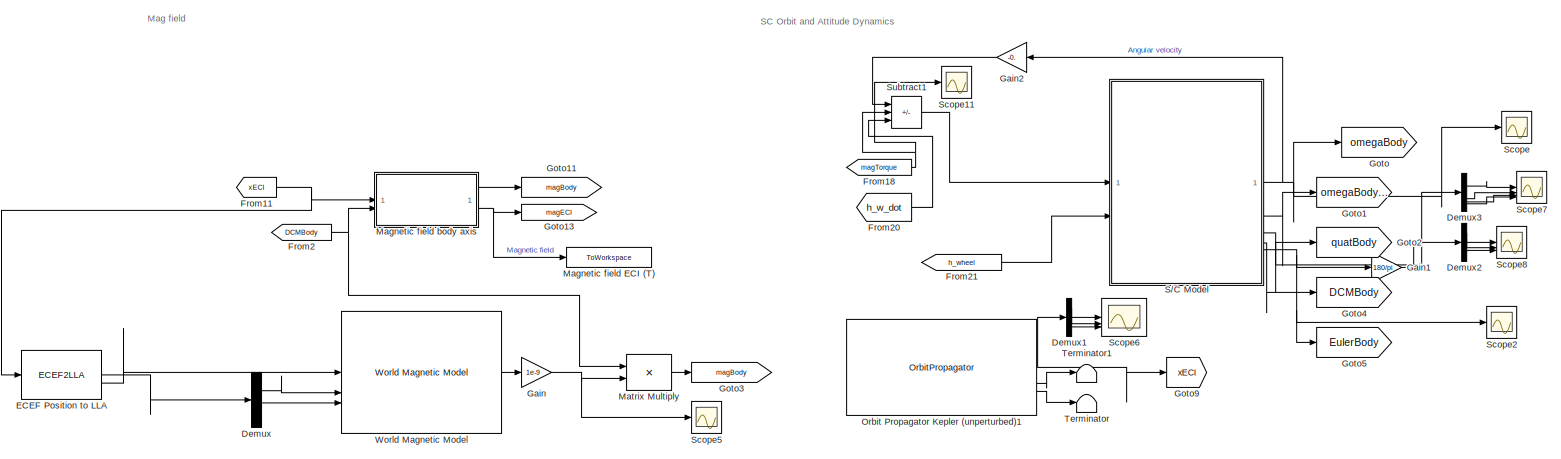
[diagram: root canvas - part 1/2, full width, top band]
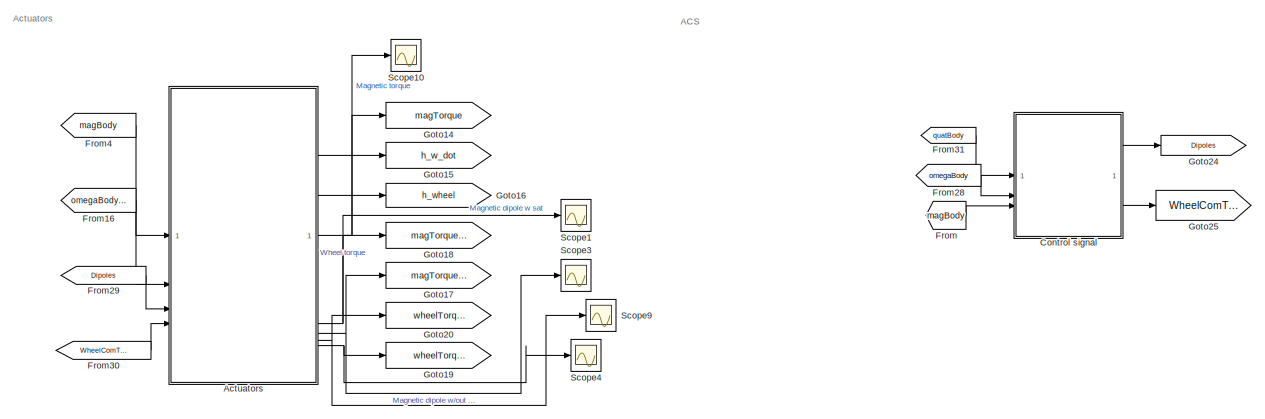
[diagram: root canvas - part 2/2, full width, bottom band]
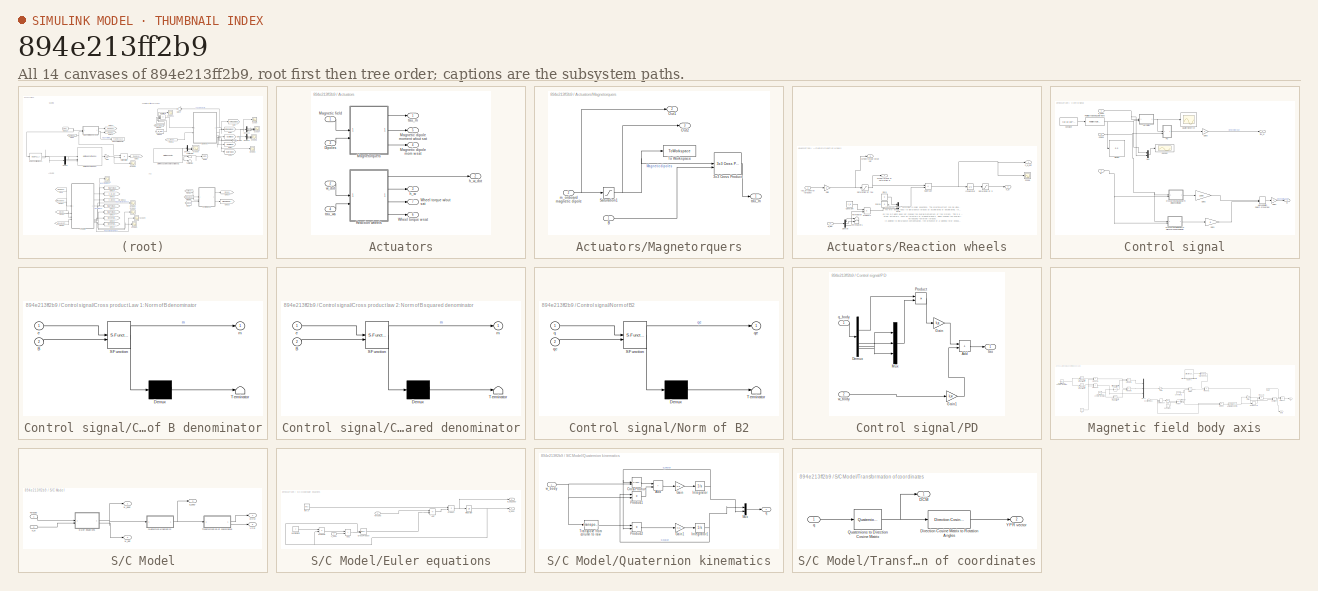
[diagram: thumbnail index - all 14 canvases of the model, root first then tree order]
MODEL slx_894e213ff2b9
KIND model
CONFIG AbsTol = auto
CONFIG EnableMultiTasking = off
CONFIG FixedStep = 0.01
CONFIG MaxStep = auto
CONFIG MinStep = auto
CONFIG RelTol = 1e-3
CONFIG SampleTimeConstraint = Unconstrained
CONFIG SolverName = FixedStepAuto
CONFIG StartTime = 0.0
CONFIG StopTime = 27726
BLOCK [SubSystem] Actuators
BLOCK [Inport] Actuators/Dipoles
  Port = 3
BLOCK [Outport] Actuators/Magnetic dipole mom w sat
  Port = 4
BLOCK [Outport] Actuators/Magnetic dipole moment w//out sat
  Port = 5
BLOCK [Inport] Actuators/Magnetic field
BLOCK [SubSystem] Actuators/Magnetorquers
BLOCK [Reference] Actuators/Magnetorquers/3x3 Cross Product  REF=sharedutil/3x3 Cross Product
  SourceBlock = sharedutil/3x3 Cross Product
  SourceType = CrossProduct
BLOCK [Inport] Actuators/Magnetorquers/B
BLOCK [Outport] Actuators/Magnetorquers/Out1
  Port = 2
BLOCK [Outport] Actuators/Magnetorquers/Out2
  Port = 3
BLOCK [Saturate] Actuators/Magnetorquers/Saturation1
  LowerLimit = -20
  UpperLimit = 20
BLOCK [ToWorkspace] Actuators/Magnetorquers/To Workspace
  FixptAsFi = on
  MaxDataPoints = inf
  SampleTime = -1
  SaveFormat = Timeseries
  VariableName = magnetic_dipoles
BLOCK [Inport] Actuators/Magnetorquers/m_onboard magnetic dipole
  Port = 2
BLOCK [Outport] Actuators/Magnetorquers/tau_m
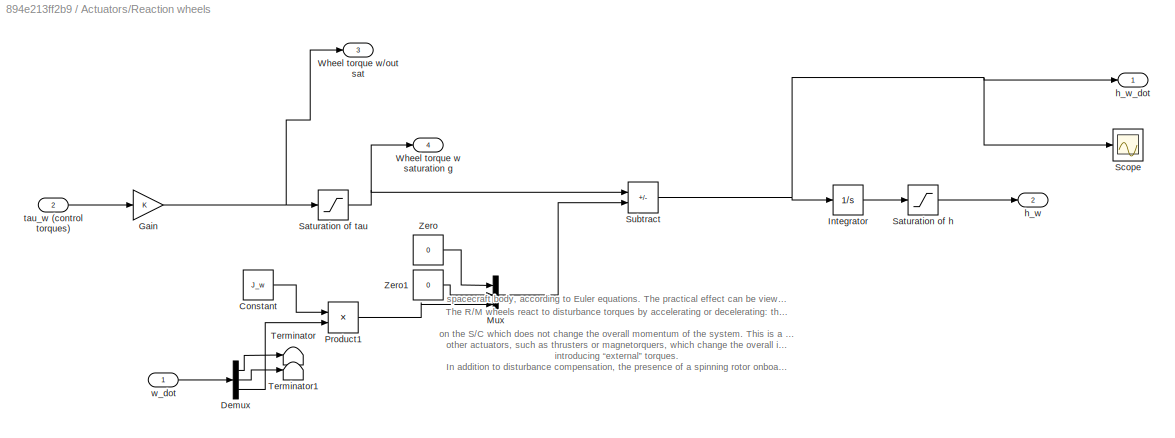
BLOCK [SubSystem] Actuators/Reaction wheels
BLOCK [Constant] Actuators/Reaction wheels/Constant
  Value = J_w
BLOCK [Demux] Actuators/Reaction wheels/Demux
  Outputs = 3
BLOCK [Gain] Actuators/Reaction wheels/Gain
BLOCK [Integrator] Actuators/Reaction wheels/Integrator
BLOCK [Mux] Actuators/Reaction wheels/Mux
  DisplayOption = bar
  Inputs = 3
BLOCK [Product] Actuators/Reaction wheels/Product1
BLOCK [Saturate] Actuators/Reaction wheels/Saturation of h
  LowerLimit = -wheel_momentum_max*100
  UpperLimit = wheel_momentum_max*100
BLOCK [Saturate] Actuators/Reaction wheels/Saturation of tau
  LowerLimit = -wheel_torque_max*10
  UpperLimit = wheel_torque_max*10
BLOCK [Scope] Actuators/Reaction wheels/Scope
  Floating = off
  NumInputPorts = 1
  ScopeSpecificationString = Simulink.scopes.TimeScopeBlockCfg('CurrentConfiguration', extmgr.ConfigurationSet(extmgr.Configuration('Core','General UI',true),extmgr.Configuration('Core','Source UI',true),extmgr.Configuration('Sources','WiredSimulink',true,'DataLoggingVariableName','ScopeData3'),extmgr.Configuration('Visuals','Time Domain',true,'SerializedDisplays',{struct('MinYLimReal','-0.000056','MaxYLimReal','0.000035','YL...<+1386ch>
BLOCK [Sum] Actuators/Reaction wheels/Subtract
  IconShape = rectangular
  Inputs = +-
BLOCK [Terminator] Actuators/Reaction wheels/Terminator
BLOCK [Terminator] Actuators/Reaction wheels/Terminator1
BLOCK [Outport] Actuators/Reaction wheels/Wheel torque w saturation g
  NameLocation = right
  Port = 4
BLOCK [Outport] Actuators/Reaction wheels/Wheel torque w//out sat
  Port = 3
BLOCK [Constant] Actuators/Reaction wheels/Zero
  OutDataTypeStr = Inherit: Inherit via back propagation
  Value = 0
BLOCK [Constant] Actuators/Reaction wheels/Zero1
  OutDataTypeStr = Inherit: Inherit via back propagation
  Value = 0
BLOCK [Outport] Actuators/Reaction wheels/h_w
  Port = 2
BLOCK [Outport] Actuators/Reaction wheels/h_w_dot
BLOCK [Inport] Actuators/Reaction wheels/tau_w (control torques)
  Port = 2
BLOCK [Inport] Actuators/Reaction wheels/w_dot
BLOCK [Outport] Actuators/Wheel torque w sat
  Port = 6
BLOCK [Outport] Actuators/Wheel torque w//out sat
  Port = 7
BLOCK [Outport] Actuators/h_w
  Port = 3
BLOCK [Outport] Actuators/h_w_dot
  Port = 2
BLOCK [Outport] Actuators/tau_m
BLOCK [Inport] Actuators/tau_ws
  Port = 4
BLOCK [Inport] Actuators/w_dot
  Port = 2
BLOCK [SubSystem] Control signal
BLOCK [Inport] Control signal/B
  Port = 3
BLOCK [Constant] Control signal/Constant
  Value = [10 10 10]*pi/180
BLOCK [SubSystem] Control signal/Cross product Law 1: Norm of B denominator
  ErrorFcn = Stateflow.Translate.translate
  PermitHierarchicalResolution = ExplicitOnly
  SFBlockType = MATLAB Function
  TreatAsAtomicUnit = on
BLOCK [Demux] Control signal/Cross product Law 1: Norm of B denominator/ Demux 
  Outputs = 1
BLOCK [S-Function] Control signal/Cross product Law 1: Norm of B denominator/ SFunction 
  EnableBusSupport = on
  FunctionName = sf_sfun
  PortCounts = [2 2]
  SFcnIsStateOwnerBlock = off
  SFunctionDeploymentMode = off
  Tag = Stateflow S-Function 2
BLOCK [Terminator] Control signal/Cross product Law 1: Norm of B denominator/ Terminator 
BLOCK [Inport] Control signal/Cross product Law 1: Norm of B denominator/B
  Port = 2
BLOCK [Inport] Control signal/Cross product Law 1: Norm of B denominator/e
BLOCK [Outport] Control signal/Cross product Law 1: Norm of B denominator/m
BLOCK [SubSystem] Control signal/Cross product law 2: Norm of B squared denominator
  ErrorFcn = Stateflow.Translate.translate
  PermitHierarchicalResolution = ExplicitOnly
  SFBlockType = MATLAB Function
  TreatAsAtomicUnit = on
BLOCK [Demux] Control signal/Cross product law 2: Norm of B squared denominator/ Demux 
  Outputs = 1
BLOCK [S-Function] Control signal/Cross product law 2: Norm of B squared denominator/ SFunction 
  EnableBusSupport = on
  FunctionName = sf_sfun
  PortCounts = [2 2]
  SFcnIsStateOwnerBlock = off
  SFunctionDeploymentMode = off
  Tag = Stateflow S-Function 1
BLOCK [Terminator] Control signal/Cross product law 2: Norm of B squared denominator/ Terminator 
BLOCK [Inport] Control signal/Cross product law 2: Norm of B squared denominator/B
  Port = 2
BLOCK [Inport] Control signal/Cross product law 2: Norm of B squared denominator/e
BLOCK [Outport] Control signal/Cross product law 2: Norm of B squared denominator/m
BLOCK [Display] Control signal/Display
  Decimation = 1
BLOCK [Gain] Control signal/Gain1
  Gain = 5
BLOCK [Gain] Control signal/Gain2
  Gain = 1000
BLOCK [Gain] Control signal/Gain3
  Gain = 0
BLOCK [Gain] Control signal/Gain4
BLOCK [ManualSwitch] Control signal/Manual Switch Select Mag torquer law
  CurrentSetting = 0
BLOCK [Mux] Control signal/Mux
  DisplayOption = bar
  Inputs = 2
BLOCK [SubSystem] Control signal/Norm of B2
  ErrorFcn = Stateflow.Translate.translate
  PermitHierarchicalResolution = ExplicitOnly
  SFBlockType = MATLAB Function
  TreatAsAtomicUnit = on
BLOCK [Demux] Control signal/Norm of B2/ Demux 
  Outputs = 1
BLOCK [S-Function] Control signal/Norm of B2/ SFunction 
  EnableBusSupport = on
  FunctionName = sf_sfun
  PortCounts = [2 2]
  SFcnIsStateOwnerBlock = off
  SFunctionDeploymentMode = off
  Tag = Stateflow S-Function 3
BLOCK [Terminator] Control signal/Norm of B2/ Terminator 
BLOCK [Inport] Control signal/Norm of B2/q
BLOCK [Inport] Control signal/Norm of B2/qc
  Port = 2
BLOCK [Outport] Control signal/Norm of B2/qe
BLOCK [SubSystem] Control signal/PD
BLOCK [Sum] Control signal/PD/Add
  IconShape = rectangular
BLOCK [Demux] Control signal/PD/Demux
BLOCK [Gain] Control signal/PD/Gain
  Gain = k_q
BLOCK [Gain] Control signal/PD/Gain1
  Gain = k_w
BLOCK [Mux] Control signal/PD/Mux
  DisplayOption = bar
  Inputs = 3
BLOCK [Product] Control signal/PD/Product
BLOCK [Inport] Control signal/PD/q_body
BLOCK [Outport] Control signal/PD/tau
BLOCK [Inport] Control signal/PD/w_body
  Port = 2
BLOCK [Scope] Control signal/Quaternion error
  Floating = off
  NumInputPorts = 1
  ScopeSpecificationString = Simulink.scopes.TimeScopeBlockCfg('CurrentConfiguration', extmgr.ConfigurationSet(extmgr.Configuration('Core','General UI',true),extmgr.Configuration('Core','Source UI',true),extmgr.Configuration('Sources','WiredSimulink',true,'DataLoggingVariableName','ScopeData4'),extmgr.Configuration('Visuals','Time Domain',true,'SerializedDisplays',{struct('MinYLimReal','-0.23082','MaxYLimReal','1.13676','YLab...<+1416ch>
BLOCK [Reference] Control signal/Rotation Angles to Quaternions  REF=sharedtransform/Rotation Angles to Quaternions
  AttributesFormatString = Rotation Order: %<rotationOrder>
  SourceBlock = sharedtransform/Rotation Angles to Quaternions
  SourceType = Ang2Quat
BLOCK [Outport] Control signal/m
BLOCK [Inport] Control signal/omega
  Port = 2
BLOCK [Scope] Control signal/q and qc
  Floating = off
  NumInputPorts = 1
  ScopeSpecificationString = Simulink.scopes.TimeScopeBlockCfg('CurrentConfiguration', extmgr.ConfigurationSet(extmgr.Configuration('Core','General UI',true),extmgr.Configuration('Core','Source UI',true),extmgr.Configuration('Sources','WiredSimulink',true,'DataLoggingVariableName','ScopeData3'),extmgr.Configuration('Visuals','Time Domain',true,'SerializedDisplays',{struct('MinYLimReal','-0.12461','MaxYLimReal','1.12153','YLab...<+1540ch>
BLOCK [Inport] Control signal/q_body
BLOCK [Outport] Control signal/tau_w
  Port = 2
BLOCK [Demux] Demux
  Outputs = 2
BLOCK [Demux] Demux1
  Outputs = 3
BLOCK [Demux] Demux2
  Outputs = 3
BLOCK [Demux] Demux3
BLOCK [ECEF2LLA] ECEF Position to LLA
BLOCK [From] From
  GotoTag = magBody
  IconDisplay = Tag and signal name
BLOCK [From] From11
  GotoTag = xECI
  IconDisplay = Signal name
BLOCK [From] From16
  GotoTag = omegaBodyDot
BLOCK [From] From18
  GotoTag = magTorque
BLOCK [From] From2
  GotoTag = DCMBody
BLOCK [From] From20
  GotoTag = h_w_dot
BLOCK [From] From21
  GotoTag = h_wheel
BLOCK [From] From28
  GotoTag = omegaBody
BLOCK [From] From29
  GotoTag = Dipoles
BLOCK [From] From30
  GotoTag = WheelComTorque
BLOCK [From] From31
  GotoTag = quatBody
BLOCK [From] From4
  GotoTag = magBody
BLOCK [Gain] Gain
  Gain = 1e-9
BLOCK [Gain] Gain1
  Gain = 180/pi
BLOCK [Gain] Gain2
  Gain = -0.
BLOCK [Goto] Goto
  GotoTag = omegaBody
BLOCK [Goto] Goto1
  GotoTag = omegaBodyDot
BLOCK [Goto] Goto11
  Commented = on
  GotoTag = magBody
BLOCK [Goto] Goto13
  Commented = on
  GotoTag = magECI
BLOCK [Goto] Goto14
  GotoTag = magTorque
BLOCK [Goto] Goto15
  GotoTag = h_w_dot
BLOCK [Goto] Goto16
  GotoTag = h_wheel
BLOCK [Goto] Goto17
  GotoTag = magTorqueWoutSat
BLOCK [Goto] Goto18
  GotoTag = magTorqueWSat
BLOCK [Goto] Goto19
  GotoTag = wheelTorqueWoutSat
BLOCK [Goto] Goto2
  GotoTag = quatBody
BLOCK [Goto] Goto20
  GotoTag = wheelTorqueWSat
BLOCK [Goto] Goto24
  GotoTag = Dipoles
BLOCK [Goto] Goto25
  GotoTag = WheelComTorque
BLOCK [Goto] Goto3
  GotoTag = magBody
BLOCK [Goto] Goto4
  GotoTag = DCMBody
BLOCK [Goto] Goto5
  GotoTag = EulerBody
BLOCK [Goto] Goto9
  GotoTag = xECI
BLOCK [ToWorkspace] Magnetic field ECI (T)
  Commented = on
  FixptAsFi = on
  MaxDataPoints = inf
  SampleTime = -1
  SaveFormat = Timeseries
  VariableName = Magnetic_Field
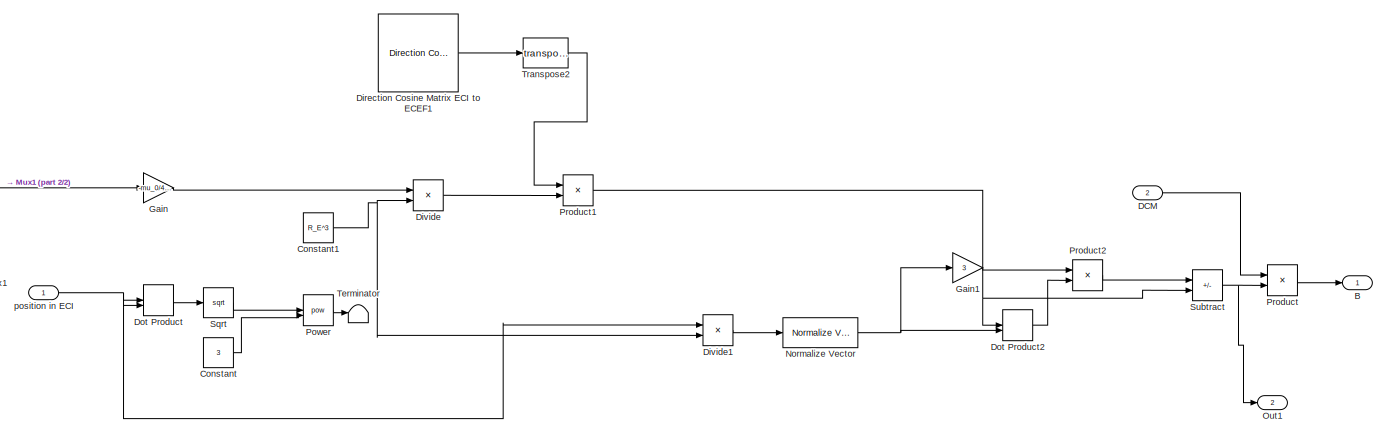
[diagram: Magnetic field body axis - part 1/2, right side, full height]
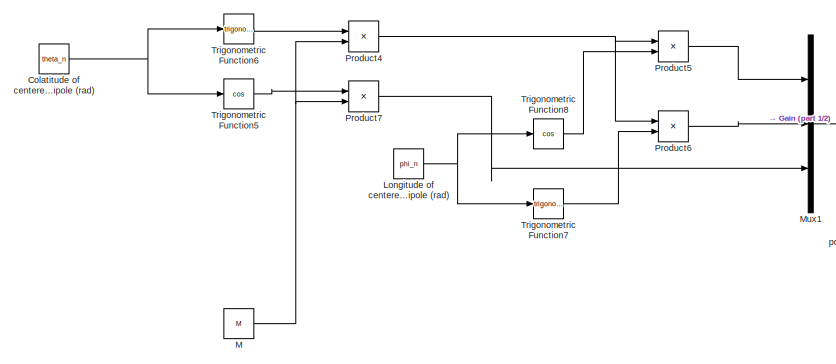
[diagram: Magnetic field body axis - part 2/2, left side, full height]
BLOCK [SubSystem] Magnetic field body axis
  Commented = on
BLOCK [Outport] Magnetic field body axis/B
BLOCK [Constant] Magnetic field body axis/Colatitude of centered magnetic dipole (rad)
  Value = theta_n
BLOCK [Constant] Magnetic field body axis/Constant
  Value = 3
BLOCK [Constant] Magnetic field body axis/Constant1
  Value = R_E^3
BLOCK [Inport] Magnetic field body axis/DCM
  Port = 2
BLOCK [Reference] Magnetic field body axis/Direction Cosine Matrix ECI to ECEF1  REF=aerolibtransform2/Direction Cosine Matrix
ECI to ECEF
  AttributesFormatString = %<red>
  SourceBlock = aerolibtransform2/Direction Cosine Matrix\nECI to ECEF
  SourceType = DCMECItoECEF
BLOCK [Product] Magnetic field body axis/Divide
  Inputs = */
BLOCK [Product] Magnetic field body axis/Divide1
  Inputs = */
BLOCK [DotProduct] Magnetic field body axis/Dot Product
  OutDataTypeStr = Inherit: Inherit via internal rule
BLOCK [DotProduct] Magnetic field body axis/Dot Product2
  OutDataTypeStr = Inherit: Inherit via internal rule
BLOCK [Gain] Magnetic field body axis/Gain
  Gain = -mu_0/4/pi
BLOCK [Gain] Magnetic field body axis/Gain1
  Gain = 3
BLOCK [Constant] Magnetic field body axis/Longitude of centered magnetic dipole (rad)
  Value = phi_n
BLOCK [Constant] Magnetic field body axis/M
  Value = M
BLOCK [Mux] Magnetic field body axis/Mux1
  DisplayOption = bar
  Inputs = 3
BLOCK [Reference] Magnetic field body axis/Normalize Vector  REF=vrlib/Utilities/Normalize Vector
  SourceBlock = vrlib/Utilities/Normalize Vector
  SourceType = Normalize Vector
BLOCK [Outport] Magnetic field body axis/Out1
  Port = 2
BLOCK [Math] Magnetic field body axis/Power
  Operator = pow
BLOCK [Product] Magnetic field body axis/Product
  Multiplication = Matrix(*)
BLOCK [Product] Magnetic field body axis/Product1
  Multiplication = Matrix(*)
BLOCK [Product] Magnetic field body axis/Product2
  Multiplication = Matrix(*)
BLOCK [Product] Magnetic field body axis/Product4
BLOCK [Product] Magnetic field body axis/Product5
BLOCK [Product] Magnetic field body axis/Product6
BLOCK [Product] Magnetic field body axis/Product7
BLOCK [Sqrt] Magnetic field body axis/Sqrt
BLOCK [Sum] Magnetic field body axis/Subtract
  IconShape = rectangular
  Inputs = +-
BLOCK [Terminator] Magnetic field body axis/Terminator
BLOCK [Math] Magnetic field body axis/Transpose2
  Operator = transpose
  RndMeth = Zero
  SignedPower = on
BLOCK [Trigonometry] Magnetic field body axis/Trigonometric Function5
  Operator = cos
BLOCK [Trigonometry] Magnetic field body axis/Trigonometric Function6
BLOCK [Trigonometry] Magnetic field body axis/Trigonometric Function7
BLOCK [Trigonometry] Magnetic field body axis/Trigonometric Function8
  Operator = cos
BLOCK [Inport] Magnetic field body axis/position in ECI
BLOCK [Product] Matrix Multiply
  Multiplication = Matrix(*)
BLOCK [OrbitPropagator] Orbit Propagator Kepler (unperturbed)1
  angleUnits = Radians
  argPeriapsis = arg_per
  customJ2 = 1.0826269e-03
  customMu = 4.305e13
  customOmega = 4.06125949e-3
  customR = 3396200
  eccentricity = ecc
  fixedPosition = [-4142689.0 -2676864.7 -4669861.6]
  fixedVelocity = [1452.7 -6720.7 2568.1]
  gravityModel = None
  inclination = orb_i
  inertialPosition = [3649700.0 3308200.0 -4676600.0]
  inertialVelocity = [-2750.8 6666.4 2573.4]
  outportFrame = Fixed-frame
  raan = RAAN
  semiMajorAxis = sma
  startDate = juliandate(2022, 4, 25, 12, 0, 0)
  trueAnomaly = 0*pi/180
  useEOPs = off
BLOCK [SubSystem] S//C Model
BLOCK [Outport] S//C Model/DCM
  Port = 4
BLOCK [SubSystem] S//C Model/Euler equations
BLOCK [Sum] S//C Model/Euler equations/Add
  IconShape = rectangular
  Inputs = +-
BLOCK [Sum] S//C Model/Euler equations/Add1
  IconShape = rectangular
BLOCK [Reference] S//C Model/Euler equations/Cross Product  REF=vrlib/Utilities/Cross Product
  SourceBlock = vrlib/Utilities/Cross Product
  SourceType = Cross Product
BLOCK [Constant] S//C Model/Euler equations/Inertia matrix
  Value = J
BLOCK [Integrator] S//C Model/Euler equations/Integrator
  InitialCondition = [0.1 0.1 0.1]
BLOCK [Constant] S//C Model/Euler equations/Inv(J)
  Value = invJ
BLOCK [Product] S//C Model/Euler equations/Product
  Multiplication = Matrix(*)
BLOCK [Product] S//C Model/Euler equations/Product1
  Multiplication = Matrix(*)
BLOCK [Inport] S//C Model/Euler equations/Torques
BLOCK [Inport] S//C Model/Euler equations/h_body
  Port = 2
BLOCK [Outport] S//C Model/Euler equations/w_body
BLOCK [Outport] S//C Model/Euler equations/w_dot_body
  Port = 2
BLOCK [SubSystem] S//C Model/Quaternion kinematics
BLOCK [Sum] S//C Model/Quaternion kinematics/Add
  IconShape = rectangular
BLOCK [Reference] S//C Model/Quaternion kinematics/Cross Product  REF=vrlib/Utilities/Cross Product
  SourceBlock = vrlib/Utilities/Cross Product
  SourceType = Cross Product
BLOCK [Gain] S//C Model/Quaternion kinematics/Gain
  Gain = 0.5
BLOCK [Gain] S//C Model/Quaternion kinematics/Gain1
  Gain = -0.5
BLOCK [Integrator] S//C Model/Quaternion kinematics/Integrator
  InitialCondition = q_0(2:4)
BLOCK [Integrator] S//C Model/Quaternion kinematics/Integrator1
  InitialCondition = q_0(1)
BLOCK [Mux] S//C Model/Quaternion kinematics/Mux
  DisplayOption = bar
  Inputs = 2
BLOCK [Product] S//C Model/Quaternion kinematics/Product1
BLOCK [Product] S//C Model/Quaternion kinematics/Product2
  Multiplication = Matrix(*)
BLOCK [Math] S//C Model/Quaternion kinematics/Transpose from column to raw
  Operator = transpose
  RndMeth = Zero
  SignedPower = on
BLOCK [Outport] S//C Model/Quaternion kinematics/q
BLOCK [Inport] S//C Model/Quaternion kinematics/w_body
BLOCK [Inport] S//C Model/Torques
BLOCK [SubSystem] S//C Model/Transformation of coordinates
BLOCK [Outport] S//C Model/Transformation of coordinates/DCM
BLOCK [Reference] S//C Model/Transformation of coordinates/Direction Cosine Matrix to Rotation Angles  REF=sharedtransform/Direction Cosine Matrix
to Rotation Angles
  AttributesFormatString = Rotation Order: %<rotationOrder>
  SourceBlock = sharedtransform/Direction Cosine Matrix\nto Rotation Angles
  SourceType = DCM2Ang
BLOCK [Reference] S//C Model/Transformation of coordinates/Quaternions to Direction Cosine Matrix  REF=sharedtransform/Quaternions to 
Direction Cosine Matrix
  SourceBlock = sharedtransform/Quaternions to \nDirection Cosine Matrix
  SourceType = Quaternion2DCM
BLOCK [Outport] S//C Model/Transformation of coordinates/YPR vector
  Port = 2
BLOCK [Inport] S//C Model/Transformation of coordinates/q
BLOCK [Outport] S//C Model/YPR
  Port = 5
BLOCK [Inport] S//C Model/h_w
  Port = 2
BLOCK [Outport] S//C Model/q_body
  Port = 3
BLOCK [Outport] S//C Model/w_body
BLOCK [Outport] S//C Model/w_dot
  Port = 2
BLOCK [Scope] Scope
  Floating = off
  NumInputPorts = 1
  ScopeSpecificationString = Simulink.scopes.TimeScopeBlockCfg('CurrentConfiguration', extmgr.ConfigurationSet(extmgr.Configuration('Core','General UI',true),extmgr.Configuration('Core','Source UI',true),extmgr.Configuration('Sources','WiredSimulink',true,'DataLoggingVariableName','ScopeData1'),extmgr.Configuration('Visuals','Time Domain',true,'SerializedDisplays',{struct('MinYLimReal','-0.02826','MaxYLimReal','0.11425','YLab...<+1735ch>
BLOCK [Scope] Scope1
  Floating = off
  NumInputPorts = 1
  ScopeSpecificationString = Simulink.scopes.TimeScopeBlockCfg('CurrentConfiguration', extmgr.ConfigurationSet(extmgr.Configuration('Core','General UI',true),extmgr.Configuration('Core','Source UI',true),extmgr.Configuration('Sources','WiredSimulink',true,'DataLoggingVariableName','ScopeData1'),extmgr.Configuration('Visuals','Time Domain',true,'SerializedDisplays',{struct('MinYLimReal','-1.00000','MaxYLimReal','1.00000','YLab...<+1530ch>
BLOCK [Scope] Scope10
  Floating = off
  NumInputPorts = 1
  ScopeSpecificationString = Simulink.scopes.TimeScopeBlockCfg('CurrentConfiguration', extmgr.ConfigurationSet(extmgr.Configuration('Core','General UI',true),extmgr.Configuration('Core','Source UI',true),extmgr.Configuration('Sources','WiredSimulink',true,'DataLoggingVariableName','ScopeData1'),extmgr.Configuration('Visuals','Time Domain',true,'SerializedDisplays',{struct('MinYLimReal','-1.00000','MaxYLimReal','1.00000','YLab...<+1528ch>
BLOCK [Scope] Scope11
  Floating = off
  NumInputPorts = 1
  ScopeSpecificationString = Simulink.scopes.TimeScopeBlockCfg('CurrentConfiguration', extmgr.ConfigurationSet(extmgr.Configuration('Core','General UI',true),extmgr.Configuration('Core','Source UI',true),extmgr.Configuration('Sources','WiredSimulink',true,'DataLoggingVariableName','ScopeData2'),extmgr.Configuration('Visuals','Time Domain',true,'SerializedDisplays',{struct('MinYLimReal','-1.00000','MaxYLimReal','1.00000','YLab...<+1521ch>
BLOCK [Scope] Scope2
  Floating = off
  NumInputPorts = 1
  ScopeSpecificationString = Simulink.scopes.TimeScopeBlockCfg('CurrentConfiguration', extmgr.ConfigurationSet(extmgr.Configuration('Core','General UI',true),extmgr.Configuration('Core','Source UI',true),extmgr.Configuration('Sources','WiredSimulink',true,'DataLoggingVariableName','ScopeData2'),extmgr.Configuration('Visuals','Time Domain',true,'SerializedDisplays',{struct('MinYLimReal','-0.10386','MaxYLimReal','0.9347','YLabe...<+1525ch>
BLOCK [Scope] Scope3
  Floating = off
  NumInputPorts = 1
  ScopeSpecificationString = Simulink.scopes.TimeScopeBlockCfg('CurrentConfiguration', extmgr.ConfigurationSet(extmgr.Configuration('Core','General UI',true),extmgr.Configuration('Core','Source UI',true),extmgr.Configuration('Sources','WiredSimulink',true,'DataLoggingVariableName','ScopeData2'),extmgr.Configuration('Visuals','Time Domain',true,'SerializedDisplays',{struct('MinYLimReal','-1.00000','MaxYLimReal','1.00000','YLab...<+1516ch>
BLOCK [Scope] Scope4
  Floating = off
  NumInputPorts = 1
  ScopeSpecificationString = Simulink.scopes.TimeScopeBlockCfg('CurrentConfiguration', extmgr.ConfigurationSet(extmgr.Configuration('Core','General UI',true),extmgr.Configuration('Core','Source UI',true),extmgr.Configuration('Sources','WiredSimulink',true,'DataLoggingVariableName','ScopeData3'),extmgr.Configuration('Visuals','Time Domain',true,'SerializedDisplays',{struct('MinYLimReal','-0.00002','MaxYLimReal','0.0001','YLabe...<+1493ch>
BLOCK [Scope] Scope5
  Floating = off
  NumInputPorts = 1
  ScopeSpecificationString = Simulink.scopes.TimeScopeBlockCfg('CurrentConfiguration', extmgr.ConfigurationSet(extmgr.Configuration('Core','General UI',true),extmgr.Configuration('Core','Source UI',true),extmgr.Configuration('Sources','WiredSimulink',true,'DataLoggingVariableName','ScopeData1'),extmgr.Configuration('Visuals','Time Domain',true,'SerializedDisplays',{struct('MinYLimReal','-0.000016','MaxYLimReal','0.000029','YL...<+1514ch>
BLOCK [Scope] Scope6
  Floating = off
  NumInputPorts = 3
  ScopeSpecificationString = Simulink.scopes.TimeScopeBlockCfg('CurrentConfiguration', extmgr.ConfigurationSet(extmgr.Configuration('Core','General UI',true),extmgr.Configuration('Core','Source UI',true),extmgr.Configuration('Sources','WiredSimulink',true,'DataLoggingVariableName','ScopeData2'),extmgr.Configuration('Visuals','Time Domain',true,'SerializedDisplays',{struct('MinYLimReal','6335301.40239','MaxYLimReal','6819633.1...<+2876ch>
BLOCK [Scope] Scope7
  Floating = off
  NumInputPorts = 4
  ScopeSpecificationString = Simulink.scopes.TimeScopeBlockCfg('CurrentConfiguration', extmgr.ConfigurationSet(extmgr.Configuration('Core','General UI',true),extmgr.Configuration('Core','Source UI',true),extmgr.Configuration('Sources','WiredSimulink',true,'DataLoggingVariableName','ScopeData3'),extmgr.Configuration('Visuals','Time Domain',true,'SerializedDisplays',{struct('MinYLimReal','0.86544','MaxYLimReal','1.01495','YLabe...<+3502ch>
BLOCK [Scope] Scope8
  Floating = off
  NumInputPorts = 3
  ScopeSpecificationString = Simulink.scopes.TimeScopeBlockCfg('CurrentConfiguration', extmgr.ConfigurationSet(extmgr.Configuration('Core','General UI',true),extmgr.Configuration('Core','Source UI',true),extmgr.Configuration('Sources','WiredSimulink',true,'DataLoggingVariableName','ScopeData4'),extmgr.Configuration('Visuals','Time Domain',true,'SerializedDisplays',{struct('MinYLimReal','4.17454','MaxYLimReal','52.42915','YLab...<+2772ch>
BLOCK [Scope] Scope9
  Floating = off
  NumInputPorts = 1
  ScopeSpecificationString = Simulink.scopes.TimeScopeBlockCfg('CurrentConfiguration', extmgr.ConfigurationSet(extmgr.Configuration('Core','General UI',true),extmgr.Configuration('Core','Source UI',true),extmgr.Configuration('Sources','WiredSimulink',true,'DataLoggingVariableName','ScopeData5'),extmgr.Configuration('Visuals','Time Domain',true,'SerializedDisplays',{struct('MinYLimReal','-0.00002','MaxYLimReal','0.00011','YLab...<+1516ch>
BLOCK [Sum] Subtract1
  IconShape = rectangular
  Inputs = ++-
BLOCK [Terminator] Terminator
BLOCK [Terminator] Terminator1
BLOCK [Reference] World Magnetic Model  REF=aerolibgravity2/World Magnetic Model
  AttributesFormatString = %<model>
  SourceBlock = aerolibgravity2/World Magnetic Model
  SourceType = WorldMagneticModel
ANNOTATION (root): ACS
ANNOTATION (root): Actuators
ANNOTATION (root): Mag field
ANNOTATION (root): SC Orbit and Attitude Dynamics
ANNOTATION Actuators/Reaction wheels: The R/M wheels react to disturbance torques by accelerating or decelerating: this way they exchange momentum with the spacecraft body, according to Euler equations. The practical effect can be viewed as the same of an “internal” torque acting on the S/C which does not change the overall momentum of the system. This is a fundamental difference with respect to other actuators, such as thrusters or m...<+767ch>
LINE Actuators/Dipoles:1 -> Actuators/Magnetorquers:2
LINE Actuators/Magnetic field:1 -> Actuators/Magnetorquers:1
LINE Actuators/Magnetorquers/3x3 Cross Product:1 -> Actuators/Magnetorquers/tau_m:1
LINE Actuators/Magnetorquers/B:1 -> Actuators/Magnetorquers/3x3 Cross Product:2
NET Actuators/Magnetorquers/Saturation1:1 -> Actuators/Magnetorquers/3x3 Cross Product:1, Actuators/Magnetorquers/Out2:1, Actuators/Magnetorquers/To Workspace:1
NET Actuators/Magnetorquers/m_onboard magnetic dipole:1 -> Actuators/Magnetorquers/Out1:1, Actuators/Magnetorquers/Saturation1:1
LINE Actuators/Magnetorquers:1 -> Actuators/tau_m:1
LINE Actuators/Magnetorquers:2 -> Actuators/Magnetic dipole moment w//out sat:1
LINE Actuators/Magnetorquers:3 -> Actuators/Magnetic dipole mom w sat:1
LINE Actuators/Reaction wheels/Constant:1 -> Actuators/Reaction wheels/Product1:1
LINE Actuators/Reaction wheels/Demux:1 -> Actuators/Reaction wheels/Terminator:1
LINE Actuators/Reaction wheels/Demux:2 -> Actuators/Reaction wheels/Terminator1:1
LINE Actuators/Reaction wheels/Demux:3 -> Actuators/Reaction wheels/Product1:2
NET Actuators/Reaction wheels/Gain:1 -> Actuators/Reaction wheels/Saturation of tau:1, Actuators/Reaction wheels/Wheel torque w//out sat:1
LINE Actuators/Reaction wheels/Integrator:1 -> Actuators/Reaction wheels/Saturation of h:1
LINE Actuators/Reaction wheels/Mux:1 -> Actuators/Reaction wheels/Subtract:2
LINE Actuators/Reaction wheels/Product1:1 -> Actuators/Reaction wheels/Mux:3
LINE Actuators/Reaction wheels/Saturation of h:1 -> Actuators/Reaction wheels/h_w:1
NET Actuators/Reaction wheels/Saturation of tau:1 -> Actuators/Reaction wheels/Subtract:1, Actuators/Reaction wheels/Wheel torque w saturation g:1
NET Actuators/Reaction wheels/Subtract:1 -> Actuators/Reaction wheels/Integrator:1, Actuators/Reaction wheels/Scope:1, Actuators/Reaction wheels/h_w_dot:1
LINE Actuators/Reaction wheels/Zero1:1 -> Actuators/Reaction wheels/Mux:2
LINE Actuators/Reaction wheels/Zero:1 -> Actuators/Reaction wheels/Mux:1
LINE Actuators/Reaction wheels/tau_w (control torques):1 -> Actuators/Reaction wheels/Gain:1
LINE Actuators/Reaction wheels/w_dot:1 -> Actuators/Reaction wheels/Demux:1
LINE Actuators/Reaction wheels:1 -> Actuators/h_w_dot:1
LINE Actuators/Reaction wheels:2 -> Actuators/h_w:1
LINE Actuators/Reaction wheels:3 -> Actuators/Wheel torque w//out sat:1
LINE Actuators/Reaction wheels:4 -> Actuators/Wheel torque w sat:1
LINE Actuators/tau_ws:1 -> Actuators/Reaction wheels:2
LINE Actuators/w_dot:1 -> Actuators/Reaction wheels:1
NET Actuators:1 -> Goto14:1, Scope10:1
LINE Actuators:2 -> Goto15:1
LINE Actuators:3 -> Goto16:1
NET Actuators:4 -> Goto18:1, Scope1:1
NET Actuators:5 -> Goto17:1, Scope3:1
NET Actuators:6 -> Goto20:1, Scope9:1
NET Actuators:7 -> Goto19:1, Scope4:1
NET Control signal/B:1 -> Control signal/Cross product Law 1: Norm of B denominator:2, Control signal/Cross product law 2: Norm of B squared denominator:2
LINE Control signal/Constant:1 -> Control signal/Rotation Angles to Quaternions:1
LINE Control signal/Cross product Law 1: Norm of B denominator:1 -> Control signal/Gain2:1
LINE Control signal/Cross product law 2: Norm of B squared denominator:1 -> Control signal/Gain1:1
LINE Control signal/Gain1:1 -> Control signal/Manual Switch Select Mag torquer law:2
LINE Control signal/Gain2:1 -> Control signal/Manual Switch Select Mag torquer law:1
LINE Control signal/Gain3:1 -> Control signal/tau_w:1
LINE Control signal/Gain4:1 -> Control signal/m:1
LINE Control signal/Manual Switch Select Mag torquer law:1 -> Control signal/Gain4:1
LINE Control signal/Mux:1 -> Control signal/q and qc:1
NET Control signal/Norm of B2:1 -> Control signal/PD:1, Control signal/Quaternion error:1
LINE Control signal/PD/Add:1 -> Control signal/PD/tau:1
LINE Control signal/PD/Demux:1 -> Control signal/PD/Product:1
LINE Control signal/PD/Demux:2 -> Control signal/PD/Mux:1
LINE Control signal/PD/Demux:3 -> Control signal/PD/Mux:2
LINE Control signal/PD/Demux:4 -> Control signal/PD/Mux:3
LINE Control signal/PD/Gain1:1 -> Control signal/PD/Add:2
LINE Control signal/PD/Gain:1 -> Control signal/PD/Add:1
LINE Control signal/PD/Mux:1 -> Control signal/PD/Product:2
LINE Control signal/PD/Product:1 -> Control signal/PD/Gain:1
LINE Control signal/PD/q_body:1 -> Control signal/PD/Demux:1
LINE Control signal/PD/w_body:1 -> Control signal/PD/Gain1:1
LINE Control signal/PD:1 -> Control signal/Gain3:1
NET Control signal/Rotation Angles to Quaternions:1 -> Control signal/Display:1, Control signal/Mux:1, Control signal/Norm of B2:2
NET Control signal/omega:1 -> Control signal/Cross product Law 1: Norm of B denominator:1, Control signal/Cross product law 2: Norm of B squared denominator:1, Control signal/PD:2
NET Control signal/q_body:1 -> Control signal/Mux:2, Control signal/Norm of B2:1
LINE Control signal:1 -> Goto24:1
LINE Control signal:2 -> Goto25:1
LINE Demux1:1 -> Scope6:1
LINE Demux1:2 -> Scope6:2
LINE Demux1:3 -> Scope6:3
LINE Demux2:1 -> Scope8:1
LINE Demux2:2 -> Scope8:2
LINE Demux2:3 -> Scope8:3
LINE Demux3:1 -> Scope7:1
LINE Demux3:2 -> Scope7:2
LINE Demux3:3 -> Scope7:3
LINE Demux3:4 -> Scope7:4
LINE Demux:1 -> World Magnetic Model:2
LINE Demux:2 -> World Magnetic Model:3
LINE ECEF Position to LLA:1 -> Demux:1
LINE ECEF Position to LLA:2 -> World Magnetic Model:1
NET From11:1 -> ECEF Position to LLA:1, Magnetic field body axis:1
LINE From16:1 -> Actuators:2
NET From18:1 -> Scope11:1, Subtract1:2
LINE From20:1 -> Subtract1:3
LINE From21:1 -> S//C Model:2
LINE From28:1 -> Control signal:2
LINE From29:1 -> Actuators:3
NET From2:1 -> Magnetic field body axis:2, Matrix Multiply:1
LINE From30:1 -> Actuators:4
LINE From31:1 -> Control signal:1
LINE From4:1 -> Actuators:1
LINE From:1 -> Control signal:3
LINE Gain1:1 -> Demux2:1
LINE Gain2:1 -> Subtract1:1
NET Gain:1 -> Matrix Multiply:2, Scope5:1
NET Magnetic field body axis/Colatitude of centered magnetic dipole (rad):1 -> Magnetic field body axis/Trigonometric Function5:1, Magnetic field body axis/Trigonometric Function6:1
NET Magnetic field body axis/Constant1:1 -> Magnetic field body axis/Divide1:2, Magnetic field body axis/Divide:2
LINE Magnetic field body axis/Constant:1 -> Magnetic field body axis/Power:2
LINE Magnetic field body axis/DCM:1 -> Magnetic field body axis/Product:1
LINE Magnetic field body axis/Direction Cosine Matrix ECI to ECEF1:1 -> Magnetic field body axis/Transpose2:1
LINE Magnetic field body axis/Divide1:1 -> Magnetic field body axis/Normalize Vector:1
LINE Magnetic field body axis/Divide:1 -> Magnetic field body axis/Product1:2
LINE Magnetic field body axis/Dot Product2:1 -> Magnetic field body axis/Product2:2
LINE Magnetic field body axis/Dot Product:1 -> Magnetic field body axis/Sqrt:1
LINE Magnetic field body axis/Gain1:1 -> Magnetic field body axis/Product2:1
LINE Magnetic field body axis/Gain:1 -> Magnetic field body axis/Divide:1
NET Magnetic field body axis/Longitude of centered magnetic dipole (rad):1 -> Magnetic field body axis/Trigonometric Function7:1, Magnetic field body axis/Trigonometric Function8:1
NET Magnetic field body axis/M:1 -> Magnetic field body axis/Product4:2, Magnetic field body axis/Product7:2
LINE Magnetic field body axis/Mux1:1 -> Magnetic field body axis/Gain:1
NET Magnetic field body axis/Normalize Vector:1 -> Magnetic field body axis/Dot Product2:2, Magnetic field body axis/Gain1:1
LINE Magnetic field body axis/Power:1 -> Magnetic field body axis/Terminator:1
NET Magnetic field body axis/Product1:1 -> Magnetic field body axis/Dot Product2:1, Magnetic field body axis/Subtract:2
LINE Magnetic field body axis/Product2:1 -> Magnetic field body axis/Subtract:1
NET Magnetic field body axis/Product4:1 -> Magnetic field body axis/Product5:1, Magnetic field body axis/Product6:1
LINE Magnetic field body axis/Product5:1 -> Magnetic field body axis/Mux1:1
LINE Magnetic field body axis/Product6:1 -> Magnetic field body axis/Mux1:2
LINE Magnetic field body axis/Product7:1 -> Magnetic field body axis/Mux1:3
LINE Magnetic field body axis/Product:1 -> Magnetic field body axis/B:1
LINE Magnetic field body axis/Sqrt:1 -> Magnetic field body axis/Power:1
NET Magnetic field body axis/Subtract:1 -> Magnetic field body axis/Out1:1, Magnetic field body axis/Product:2
LINE Magnetic field body axis/Transpose2:1 -> Magnetic field body axis/Product1:1
LINE Magnetic field body axis/Trigonometric Function5:1 -> Magnetic field body axis/Product7:1
LINE Magnetic field body axis/Trigonometric Function6:1 -> Magnetic field body axis/Product4:1
LINE Magnetic field body axis/Trigonometric Function7:1 -> Magnetic field body axis/Product6:2
LINE Magnetic field body axis/Trigonometric Function8:1 -> Magnetic field body axis/Product5:2
NET Magnetic field body axis/position in ECI:1 -> Magnetic field body axis/Divide1:1, Magnetic field body axis/Dot Product:1, Magnetic field body axis/Dot Product:2
LINE Magnetic field body axis:1 -> Goto11:1
NET Magnetic field body axis:2 -> Goto13:1, Magnetic field ECI (T):1
LINE Matrix Multiply:1 -> Goto3:1
NET Orbit Propagator Kepler (unperturbed)1:1 -> Demux1:1, Goto9:1
LINE Orbit Propagator Kepler (unperturbed)1:2 -> Terminator1:1
LINE Orbit Propagator Kepler (unperturbed)1:3 -> Terminator:1
LINE S//C Model/Euler equations/Add1:1 -> S//C Model/Euler equations/Cross Product:2
LINE S//C Model/Euler equations/Add:1 -> S//C Model/Euler equations/Product:2
LINE S//C Model/Euler equations/Cross Product:1 -> S//C Model/Euler equations/Add:2
LINE S//C Model/Euler equations/Inertia matrix:1 -> S//C Model/Euler equations/Product1:1
NET S//C Model/Euler equations/Integrator:1 -> S//C Model/Euler equations/Cross Product:1, S//C Model/Euler equations/Product1:2, S//C Model/Euler equations/w_body:1
LINE S//C Model/Euler equations/Inv(J):1 -> S//C Model/Euler equations/Product:1
LINE S//C Model/Euler equations/Product1:1 -> S//C Model/Euler equations/Add1:1
NET S//C Model/Euler equations/Product:1 -> S//C Model/Euler equations/Integrator:1, S//C Model/Euler equations/w_dot_body:1
LINE S//C Model/Euler equations/Torques:1 -> S//C Model/Euler equations/Add:1
LINE S//C Model/Euler equations/h_body:1 -> S//C Model/Euler equations/Add1:2
NET S//C Model/Euler equations:1 -> S//C Model/Quaternion kinematics:1, S//C Model/w_body:1
LINE S//C Model/Euler equations:2 -> S//C Model/w_dot:1
LINE S//C Model/Quaternion kinematics/Add:1 -> S//C Model/Quaternion kinematics/Gain:1
LINE S//C Model/Quaternion kinematics/Cross Product:1 -> S//C Model/Quaternion kinematics/Add:1
LINE S//C Model/Quaternion kinematics/Gain1:1 -> S//C Model/Quaternion kinematics/Integrator1:1
LINE S//C Model/Quaternion kinematics/Gain:1 -> S//C Model/Quaternion kinematics/Integrator:1
NET S//C Model/Quaternion kinematics/Integrator1:1 -> S//C Model/Quaternion kinematics/Mux:1, S//C Model/Quaternion kinematics/Product1:1
NET S//C Model/Quaternion kinematics/Integrator:1 -> S//C Model/Quaternion kinematics/Cross Product:1, S//C Model/Quaternion kinematics/Mux:2, S//C Model/Quaternion kinematics/Product2:2
LINE S//C Model/Quaternion kinematics/Mux:1 -> S//C Model/Quaternion kinematics/q:1
LINE S//C Model/Quaternion kinematics/Product1:1 -> S//C Model/Quaternion kinematics/Add:2
LINE S//C Model/Quaternion kinematics/Product2:1 -> S//C Model/Quaternion kinematics/Gain1:1
LINE S//C Model/Quaternion kinematics/Transpose from column to raw:1 -> S//C Model/Quaternion kinematics/Product2:1
NET S//C Model/Quaternion kinematics/w_body:1 -> S//C Model/Quaternion kinematics/Cross Product:2, S//C Model/Quaternion kinematics/Product1:2, S//C Model/Quaternion kinematics/Transpose from column to raw:1
NET S//C Model/Quaternion kinematics:1 -> S//C Model/Transformation of coordinates:1, S//C Model/q_body:1
LINE S//C Model/Torques:1 -> S//C Model/Euler equations:1
LINE S//C Model/Transformation of coordinates/Direction Cosine Matrix to Rotation Angles:1 -> S//C Model/Transformation of coordinates/YPR vector:1
NET S//C Model/Transformation of coordinates/Quaternions to Direction Cosine Matrix:1 -> S//C Model/Transformation of coordinates/DCM:1, S//C Model/Transformation of coordinates/Direction Cosine Matrix to Rotation Angles:1
LINE S//C Model/Transformation of coordinates/q:1 -> S//C Model/Transformation of coordinates/Quaternions to Direction Cosine Matrix:1
LINE S//C Model/Transformation of coordinates:1 -> S//C Model/DCM:1
LINE S//C Model/Transformation of coordinates:2 -> S//C Model/YPR:1
LINE S//C Model/h_w:1 -> S//C Model/Euler equations:2
NET S//C Model:1 -> Gain2:1, Goto:1, Scope:1
LINE S//C Model:2 -> Goto1:1
NET S//C Model:3 -> Demux3:1, Goto2:1
LINE S//C Model:4 -> Goto4:1
NET S//C Model:5 -> Gain1:1, Goto5:1, Scope2:1
LINE Subtract1:1 -> S//C Model:1
LINE World Magnetic Model:1 -> Gain:1
note: NET lines group one-source signal fan-out (src -> all destinations, sorted); 1:1 wires keep LINE
CHART Control signal/Cross product Law 1: Norm of B denominator states=1 transitions=1
  STATE_LABEL 'eML_blk_kernel()'
  STATE_LABEL 'SCRIPT:\nfunction m = fcn(e,B)\n\nm = cross(e,B)/(norm(B));\n'
CHART Control signal/Norm of B2 states=1 transitions=1
  STATE_LABEL 'eML_blk_kernel()'
  STATE_LABEL 'SCRIPT:\nfunction qe = fcn(q,qc)\n\nqe1 = qc(1)*q(2)+qc(4)*q(3)-qc(3)*q(4)-qc(2)*q(1);\nqe2 = -qc(4)*q(2)+qc(1)*q(3)+qc(2)*q(4)-qc(3)*q(1);\nqe3 = qc(3)*q(2)-qc(2)*q(3)+qc(1)*q(4)-qc(4)*q(1);\nqe0 = qc(2)*q(2)+qc(3)*q(3)+qc(4)*q(4) + qc(1)*q(1);\n\nqe=[qe0;qe1;qe2;qe3];'
CHART Control signal/Cross product law 2: Norm of B squared denominator states=1 transitions=1
  STATE_LABEL 'eML_blk_kernel()'
  STATE_LABEL 'SCRIPT:\nfunction m = fcn(e,B)\n\nm = cross(e,B)/(norm(B)^2);\n'
CHART  states=0 transitions=0
CHART  states=0 transitions=0
CHART  states=0 transitions=0
